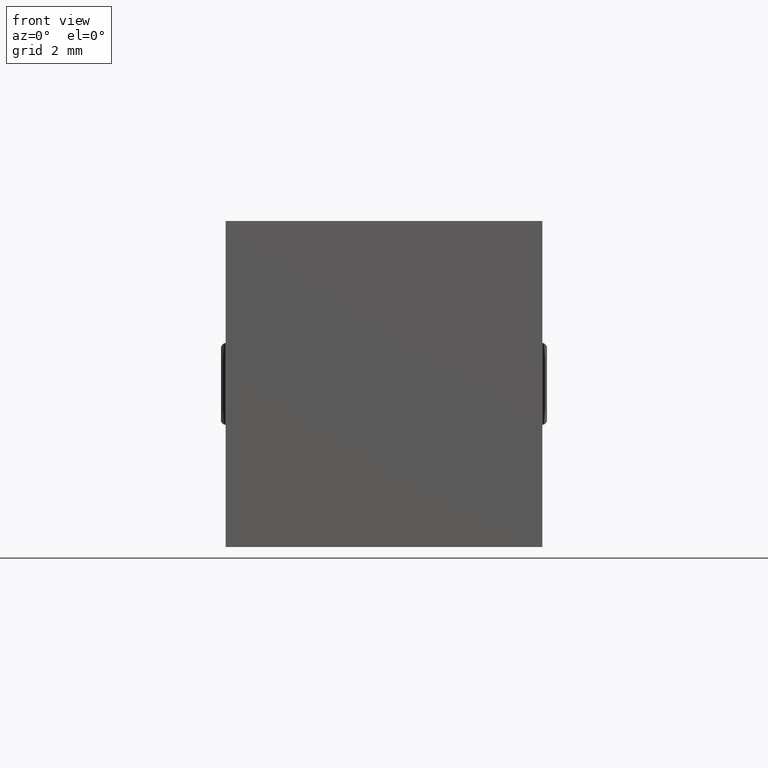
[diagram: clean part render]
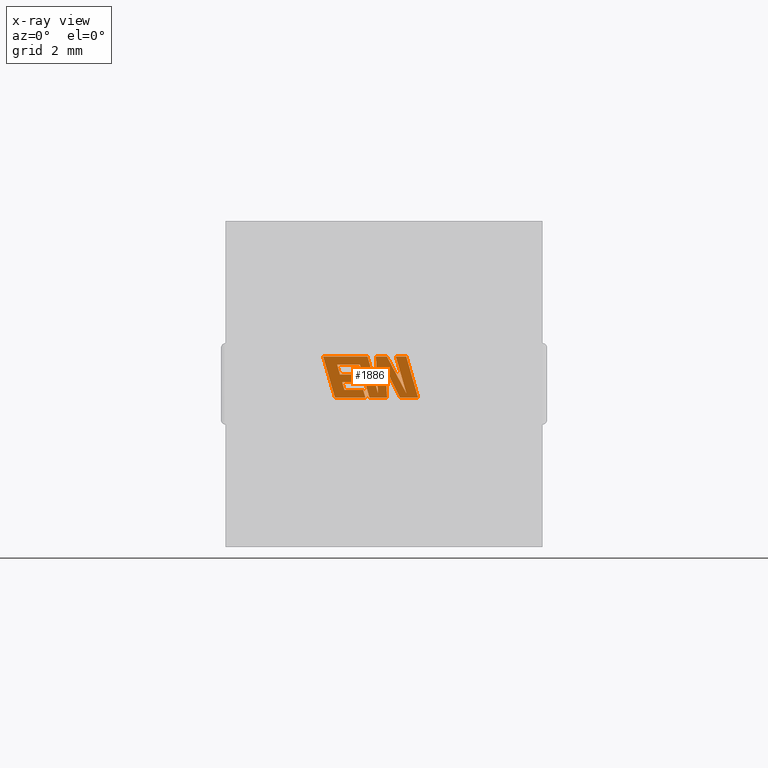
[diagram: x-ray — body ghosted, one internal face saturated and labeled with its STEP entity id]
A machine part, front view, then the same camera in x-ray: the body is ghosted and one INTERNAL B-rep face — a face not visible from any outside direction — is saturated and labeled: STEP entity #1886.
In plain terms, the highlighted planar face has unit normal (0, -1, 0).
Its self-contained STEP definition (entity closure, byte-faithful):
#30 = EDGE_CURVE ( 'NONE', #2271, #2217, #1177, .T. ) ;
#48 = DIRECTION ( 'NONE',  ( 0.4668459304955231400, 0.0000000000000000000, -0.8843386665637600300 ) ) ;
#51 = CARTESIAN_POINT ( 'NONE',  ( 5.561546968655206600, 18.10000000000000100, 4.759849656704574300 ) ) ;
#70 = CARTESIAN_POINT ( 'NONE',  ( 4.279247702984306100, 18.10000000000000100, 5.254272645011470300 ) ) ;
#72 = EDGE_CURVE ( 'NONE', #3309, #1079, #387, .T. ) ;
#91 = VECTOR ( 'NONE', #1739, 1000.000000000000100 ) ;
#110 = CARTESIAN_POINT ( 'NONE',  ( 5.561546968655206600, 18.10000000000000100, 4.759849656704574300 ) ) ;
#121 = ORIENTED_EDGE ( 'NONE', *, *, #3181, .F. ) ;
#127 = LINE ( 'NONE', #2675, #2564 ) ;
#132 = VECTOR ( 'NONE', #1263, 1000.000000000000000 ) ;
#151 = CARTESIAN_POINT ( 'NONE',  ( 4.793036486071251500, 18.10000000000000100, 6.073599999999999900 ) ) ;
#159 = CARTESIAN_POINT ( 'NONE',  ( 5.763679093957989600, 18.10000000000000100, 4.898370222301805300 ) ) ;
#196 = ORIENTED_EDGE ( 'NONE', *, *, #2824, .F. ) ;
#210 = VECTOR ( 'NONE', #1580, 999.9999999999998900 ) ;
#221 = ORIENTED_EDGE ( 'NONE', *, *, #1958, .F. ) ;
#248 = LINE ( 'NONE', #159, #91 ) ;
#255 = DIRECTION ( 'NONE',  ( 0.0000000000000000000, 0.0000000000000000000, -1.000000000000000000 ) ) ;
#269 = DIRECTION ( 'NONE',  ( 1.000000000000000000, 0.0000000000000000000, 0.0000000000000000000 ) ) ;
#309 = CARTESIAN_POINT ( 'NONE',  ( 6.137748934045092100, 18.10000000000000100, 4.759849656704574300 ) ) ;
#315 = ORIENTED_EDGE ( 'NONE', *, *, #30, .F. ) ;
#331 = DIRECTION ( 'NONE',  ( 0.05375259206908127000, 0.0000000000000000000, -0.9985542843760948400 ) ) ;
#335 = CARTESIAN_POINT ( 'NONE',  ( 4.456056460216497200, 18.10000000000000100, 4.759849656704574300 ) ) ;
#338 = EDGE_CURVE ( 'NONE', #2540, #2469, #2285, .T. ) ;
#345 = CARTESIAN_POINT ( 'NONE',  ( 5.146574942050870400, 18.10000000000000100, 4.759849656704574300 ) ) ;
#352 = LINE ( 'NONE', #814, #972 ) ;
#387 = LINE ( 'NONE', #309, #1849 ) ;
#390 = VECTOR ( 'NONE', #1252, 1000.000000000000200 ) ;
#398 = DIRECTION ( 'NONE',  ( 0.2793947940878371300, 0.0000000000000000000, -0.9601763114327571700 ) ) ;
#412 = EDGE_CURVE ( 'NONE', #1963, #1685, #2666, .T. ) ;
#456 = VECTOR ( 'NONE', #2117, 1000.000000000000000 ) ;
#459 = VECTOR ( 'NONE', #2773, 1000.000000000000000 ) ;
#464 = CARTESIAN_POINT ( 'NONE',  ( 3.715370694027962700, 18.10000000000000100, 5.254272645011470300 ) ) ;
#467 = CARTESIAN_POINT ( 'NONE',  ( 5.760036023455370500, 18.10000000000000100, 6.073599999999999900 ) ) ;
#528 = CARTESIAN_POINT ( 'NONE',  ( 5.426191753502684500, 18.10000000000000100, 6.073599999999999900 ) ) ;
#543 = VECTOR ( 'NONE', #1565, 1000.000000000000000 ) ;
#588 = CARTESIAN_POINT ( 'NONE',  ( 5.760036023455370500, 18.10000000000000100, 6.073599999999999900 ) ) ;
#610 = LINE ( 'NONE', #2544, #3302 ) ;
#614 = LINE ( 'NONE', #2075, #543 ) ;
#623 = ORIENTED_EDGE ( 'NONE', *, *, #905, .F. ) ;
#629 = CARTESIAN_POINT ( 'NONE',  ( 5.146574942050870400, 18.10000000000000100, 4.759849656704574300 ) ) ;
#633 = VERTEX_POINT ( 'NONE', #1186 ) ;
#640 = VECTOR ( 'NONE', #269, 1000.000000000000000 ) ;
#641 = EDGE_CURVE ( 'NONE', #2147, #633, #610, .T. ) ;
#666 = LINE ( 'NONE', #3112, #1437 ) ;
#691 = DIRECTION ( 'NONE',  ( -1.000000000000000000, 0.0000000000000000000, 0.0000000000000000000 ) ) ;
#699 = ORIENTED_EDGE ( 'NONE', *, *, #412, .F. ) ;
#707 = VERTEX_POINT ( 'NONE', #464 ) ;
#713 = DIRECTION ( 'NONE',  ( 0.2740217765954108800, 0.0000000000000000000, -0.9617234872620584700 ) ) ;
#736 = CARTESIAN_POINT ( 'NONE',  ( 4.385032563790553600, 18.10000000000000100, 5.009915288878209700 ) ) ;
#744 = VERTEX_POINT ( 'NONE', #335 ) ;
#814 = CARTESIAN_POINT ( 'NONE',  ( 5.143270578691509200, 18.10000000000000100, 6.073599999999999900 ) ) ;
#821 = DIRECTION ( 'NONE',  ( -1.000000000000000000, 0.0000000000000000000, 0.0000000000000000000 ) ) ;
#863 = EDGE_CURVE ( 'NONE', #1433, #744, #1544, .T. ) ;
#905 = EDGE_CURVE ( 'NONE', #1349, #1433, #1094, .T. ) ;
#909 = LINE ( 'NONE', #1874, #3144 ) ;
#972 = VECTOR ( 'NONE', #48, 1000.000000000000100 ) ;
#988 = DIRECTION ( 'NONE',  ( 0.2746459304916925600, 0.0000000000000000000, -0.9615454294334472300 ) ) ;
#1001 = CARTESIAN_POINT ( 'NONE',  ( 5.096051860518013400, 18.10000000000000100, 5.698409781575956700 ) ) ;
#1008 = LINE ( 'NONE', #51, #456 ) ;
#1018 = FACE_OUTER_BOUND ( 'NONE', #2298, .T. ) ;
#1020 = CARTESIAN_POINT ( 'NONE',  ( 4.522770187743356400, 18.10000000000000100, 6.073599999999999900 ) ) ;
#1021 = VERTEX_POINT ( 'NONE', #1342 ) ;
#1041 = EDGE_CURVE ( 'NONE', #3216, #1062, #3297, .T. ) ;
#1053 = VECTOR ( 'NONE', #1458, 1000.000000000000100 ) ;
#1062 = VERTEX_POINT ( 'NONE', #629 ) ;
#1069 = CARTESIAN_POINT ( 'NONE',  ( 3.485501733416354900, 18.10000000000000100, 4.759849656704574300 ) ) ;
#1079 = VERTEX_POINT ( 'NONE', #110 ) ;
#1085 = ORIENTED_EDGE ( 'NONE', *, *, #2201, .F. ) ;
#1086 = ORIENTED_EDGE ( 'NONE', *, *, #3277, .F. ) ;
#1094 = LINE ( 'NONE', #1822, #640 ) ;
#1102 = LINE ( 'NONE', #2830, #1755 ) ;
#1106 = LINE ( 'NONE', #2472, #132 ) ;
#1177 = LINE ( 'NONE', #3323, #2632 ) ;
#1186 = CARTESIAN_POINT ( 'NONE',  ( 3.553046337719516100, 18.10000000000000100, 5.823658200264219400 ) ) ;
#1195 = CARTESIAN_POINT ( 'NONE',  ( 4.522770187743356400, 18.10000000000000100, 6.073599999999999900 ) ) ;
#1197 = CARTESIAN_POINT ( 'NONE',  ( 4.587095149659726100, 18.10000000000000100, 4.759849656704574300 ) ) ;
#1239 = VERTEX_POINT ( 'NONE', #1399 ) ;
#1240 = LINE ( 'NONE', #528, #1660 ) ;
#1249 = CARTESIAN_POINT ( 'NONE',  ( 3.786474482350782500, 18.10000000000000100, 5.009915288878209700 ) ) ;
#1252 = DIRECTION ( 'NONE',  ( 0.2763139702539101300, 0.0000000000000000000, -0.9610674221107076100 ) ) ;
#1263 = DIRECTION ( 'NONE',  ( -0.05596501978068319600, 0.0000000000000000000, 0.9984327301130245800 ) ) ;
#1291 = DIRECTION ( 'NONE',  ( 1.000000000000000000, 0.0000000000000000000, 0.0000000000000000000 ) ) ;
#1342 = CARTESIAN_POINT ( 'NONE',  ( 3.646080451766749800, 18.10000000000000100, 5.497140017266131600 ) ) ;
#1349 = VERTEX_POINT ( 'NONE', #1249 ) ;
#1361 = EDGE_CURVE ( 'NONE', #2309, #2147, #666, .T. ) ;
#1363 = CARTESIAN_POINT ( 'NONE',  ( 5.143270578691509200, 18.10000000000000100, 6.073599999999999900 ) ) ;
#1396 = ORIENTED_EDGE ( 'NONE', *, *, #2507, .F. ) ;
#1399 = CARTESIAN_POINT ( 'NONE',  ( 4.209877568826157400, 18.10000000000000100, 5.497140017266131600 ) ) ;
#1423 = LINE ( 'NONE', #467, #390 ) ;
#1433 = VERTEX_POINT ( 'NONE', #736 ) ;
#1437 = VECTOR ( 'NONE', #2853, 1000.000000000000000 ) ;
#1458 = DIRECTION ( 'NONE',  ( -0.2765379750249951600, 0.0000000000000000000, 0.9610029908221280300 ) ) ;
#1544 = LINE ( 'NONE', #2346, #1710 ) ;
#1558 = VECTOR ( 'NONE', #2670, 1000.000000000000000 ) ;
#1565 = DIRECTION ( 'NONE',  ( 1.000000000000000000, 0.0000000000000000000, 0.0000000000000000000 ) ) ;
#1569 = ORIENTED_EDGE ( 'NONE', *, *, #1909, .F. ) ;
#1577 = LINE ( 'NONE', #345, #1825 ) ;
#1580 = DIRECTION ( 'NONE',  ( 0.2759782365590809900, 0.0000000000000000000, -0.9611638845408935200 ) ) ;
#1618 = ORIENTED_EDGE ( 'NONE', *, *, #1955, .F. ) ;
#1645 = LINE ( 'NONE', #70, #1558 ) ;
#1660 = VECTOR ( 'NONE', #1291, 1000.000000000000000 ) ;
#1685 = VERTEX_POINT ( 'NONE', #2922 ) ;
#1710 = VECTOR ( 'NONE', #2858, 1000.000000000000100 ) ;
#1739 = DIRECTION ( 'NONE',  ( -0.2760118818968594900, 0.0000000000000000000, 0.9611542233438679100 ) ) ;
#1755 = VECTOR ( 'NONE', #988, 1000.000000000000000 ) ;
#1772 = VERTEX_POINT ( 'NONE', #2228 ) ;
#1808 = DIRECTION ( 'NONE',  ( 0.0000000000000000000, -1.000000000000000000, 0.0000000000000000000 ) ) ;
#1822 = CARTESIAN_POINT ( 'NONE',  ( 3.786474482350782500, 18.10000000000000100, 5.009915288878209700 ) ) ;
#1825 = VECTOR ( 'NONE', #821, 1000.000000000000000 ) ;
#1849 = VECTOR ( 'NONE', #3193, 1000.000000000000000 ) ;
#1874 = CARTESIAN_POINT ( 'NONE',  ( 4.288926605253210200, 18.10000000000000100, 6.073599999999999900 ) ) ;
#1875 = ORIENTED_EDGE ( 'NONE', *, *, #2920, .F. ) ;
#1886 = ADVANCED_FACE ( 'NONE', ( #1018 ), #2808, .T. ) ;
#1895 = DIRECTION ( 'NONE',  ( 1.000000000000000000, 0.0000000000000000000, 0.0000000000000000000 ) ) ;
#1909 = EDGE_CURVE ( 'NONE', #2976, #3309, #1423, .T. ) ;
#1955 = EDGE_CURVE ( 'NONE', #2639, #707, #1645, .T. ) ;
#1958 = EDGE_CURVE ( 'NONE', #2217, #1772, #352, .T. ) ;
#1962 = CARTESIAN_POINT ( 'NONE',  ( 4.858595776741734300, 18.10000000000000100, 4.904002601036935100 ) ) ;
#1963 = VERTEX_POINT ( 'NONE', #1069 ) ;
#2019 = CARTESIAN_POINT ( 'NONE',  ( 4.281316903112514000, 18.10000000000000100, 5.823658200264219400 ) ) ;
#2026 = VERTEX_POINT ( 'NONE', #2766 ) ;
#2067 = ORIENTED_EDGE ( 'NONE', *, *, #641, .F. ) ;
#2075 = CARTESIAN_POINT ( 'NONE',  ( 3.646080451766749800, 18.10000000000000100, 5.497140017266131600 ) ) ;
#2112 = ORIENTED_EDGE ( 'NONE', *, *, #1041, .F. ) ;
#2117 = DIRECTION ( 'NONE',  ( -0.4443210308328765000, 0.0000000000000000000, 0.8958676361827175900 ) ) ;
#2139 = EDGE_CURVE ( 'NONE', #744, #1963, #2714, .T. ) ;
#2143 = ORIENTED_EDGE ( 'NONE', *, *, #3082, .F. ) ;
#2147 = VERTEX_POINT ( 'NONE', #2019 ) ;
#2201 = EDGE_CURVE ( 'NONE', #707, #1349, #127, .T. ) ;
#2217 = VERTEX_POINT ( 'NONE', #1363 ) ;
#2228 = CARTESIAN_POINT ( 'NONE',  ( 5.763679093957989600, 18.10000000000000100, 4.898370222301805300 ) ) ;
#2235 = CARTESIAN_POINT ( 'NONE',  ( 4.456056460216497200, 18.10000000000000100, 4.759849656704574300 ) ) ;
#2271 = VERTEX_POINT ( 'NONE', #151 ) ;
#2279 = CARTESIAN_POINT ( 'NONE',  ( 3.553046337719516100, 18.10000000000000100, 5.823658200264219400 ) ) ;
#2285 = LINE ( 'NONE', #1020, #210 ) ;
#2298 = EDGE_LOOP ( 'NONE', ( #2939, #1569, #2302, #1396, #221, #315, #2143, #2514, #2585, #699, #2682, #3090, #623, #1085, #1618, #121, #1875, #2799, #2067, #3362, #196, #2112, #1086 ) ) ;
#2302 = ORIENTED_EDGE ( 'NONE', *, *, #2700, .F. ) ;
#2309 = VERTEX_POINT ( 'NONE', #1197 ) ;
#2346 = CARTESIAN_POINT ( 'NONE',  ( 4.385032563790553600, 18.10000000000000100, 5.009915288878209700 ) ) ;
#2359 = EDGE_CURVE ( 'NONE', #633, #1021, #3346, .T. ) ;
#2409 = VECTOR ( 'NONE', #331, 1000.000000000000000 ) ;
#2467 = CARTESIAN_POINT ( 'NONE',  ( 3.485501733416354900, 18.10000000000000100, 4.759849656704574300 ) ) ;
#2469 = VERTEX_POINT ( 'NONE', #1962 ) ;
#2472 = CARTESIAN_POINT ( 'NONE',  ( 4.858595776741734300, 18.10000000000000100, 4.904002601036935100 ) ) ;
#2507 = EDGE_CURVE ( 'NONE', #1772, #2026, #248, .T. ) ;
#2514 = ORIENTED_EDGE ( 'NONE', *, *, #338, .F. ) ;
#2540 = VERTEX_POINT ( 'NONE', #1195 ) ;
#2544 = CARTESIAN_POINT ( 'NONE',  ( 4.281316903112514000, 18.10000000000000100, 5.823658200264219400 ) ) ;
#2564 = VECTOR ( 'NONE', #398, 1000.000000000000100 ) ;
#2585 = ORIENTED_EDGE ( 'NONE', *, *, #2798, .F. ) ;
#2615 = AXIS2_PLACEMENT_3D ( 'NONE', #3376, #1808, #255 ) ;
#2621 = VECTOR ( 'NONE', #713, 1000.000000000000100 ) ;
#2632 = VECTOR ( 'NONE', #3301, 1000.000000000000000 ) ;
#2639 = VERTEX_POINT ( 'NONE', #3324 ) ;
#2666 = LINE ( 'NONE', #2467, #1053 ) ;
#2670 = DIRECTION ( 'NONE',  ( -1.000000000000000000, 0.0000000000000000000, 0.0000000000000000000 ) ) ;
#2675 = CARTESIAN_POINT ( 'NONE',  ( 3.715370694027962700, 18.10000000000000100, 5.254272645011470300 ) ) ;
#2682 = ORIENTED_EDGE ( 'NONE', *, *, #2139, .F. ) ;
#2700 = EDGE_CURVE ( 'NONE', #2026, #2976, #1240, .T. ) ;
#2714 = LINE ( 'NONE', #2235, #459 ) ;
#2766 = CARTESIAN_POINT ( 'NONE',  ( 5.426191753502684500, 18.10000000000000100, 6.073599999999999900 ) ) ;
#2773 = DIRECTION ( 'NONE',  ( -1.000000000000000000, 0.0000000000000000000, 0.0000000000000000000 ) ) ;
#2798 = EDGE_CURVE ( 'NONE', #1685, #2540, #909, .T. ) ;
#2799 = ORIENTED_EDGE ( 'NONE', *, *, #2359, .F. ) ;
#2808 = PLANE ( 'NONE',  #2615 ) ;
#2824 = EDGE_CURVE ( 'NONE', #1062, #2309, #1577, .T. ) ;
#2830 = CARTESIAN_POINT ( 'NONE',  ( 4.209877568826157400, 18.10000000000000100, 5.497140017266131600 ) ) ;
#2853 = DIRECTION ( 'NONE',  ( -0.2762517575166429400, 0.0000000000000000000, 0.9610853065513830200 ) ) ;
#2858 = DIRECTION ( 'NONE',  ( 0.2732148821746312500, 0.0000000000000000000, -0.9619530280415475900 ) ) ;
#2920 = EDGE_CURVE ( 'NONE', #1021, #1239, #614, .T. ) ;
#2922 = CARTESIAN_POINT ( 'NONE',  ( 3.107457270399118300, 18.10000000000000100, 6.073599999999999900 ) ) ;
#2939 = ORIENTED_EDGE ( 'NONE', *, *, #72, .F. ) ;
#2976 = VERTEX_POINT ( 'NONE', #588 ) ;
#3082 = EDGE_CURVE ( 'NONE', #2469, #2271, #1106, .T. ) ;
#3090 = ORIENTED_EDGE ( 'NONE', *, *, #863, .F. ) ;
#3112 = CARTESIAN_POINT ( 'NONE',  ( 4.587095149659726100, 18.10000000000000100, 4.759849656704574300 ) ) ;
#3144 = VECTOR ( 'NONE', #1895, 1000.000000000000000 ) ;
#3171 = CARTESIAN_POINT ( 'NONE',  ( 6.137748934045092100, 18.10000000000000100, 4.759849656704574300 ) ) ;
#3181 = EDGE_CURVE ( 'NONE', #1239, #2639, #1102, .T. ) ;
#3193 = DIRECTION ( 'NONE',  ( -1.000000000000000000, 0.0000000000000000000, 0.0000000000000000000 ) ) ;
#3213 = CARTESIAN_POINT ( 'NONE',  ( 5.096051860518013400, 18.10000000000000100, 5.698409781575956700 ) ) ;
#3216 = VERTEX_POINT ( 'NONE', #1001 ) ;
#3277 = EDGE_CURVE ( 'NONE', #1079, #3216, #1008, .T. ) ;
#3297 = LINE ( 'NONE', #3213, #2409 ) ;
#3301 = DIRECTION ( 'NONE',  ( 1.000000000000000000, 0.0000000000000000000, 0.0000000000000000000 ) ) ;
#3302 = VECTOR ( 'NONE', #691, 1000.000000000000000 ) ;
#3309 = VERTEX_POINT ( 'NONE', #3171 ) ;
#3323 = CARTESIAN_POINT ( 'NONE',  ( 4.793036486071251500, 18.10000000000000100, 6.073599999999999900 ) ) ;
#3324 = CARTESIAN_POINT ( 'NONE',  ( 4.279247702984306100, 18.10000000000000100, 5.254272645011470300 ) ) ;
#3346 = LINE ( 'NONE', #2279, #2621 ) ;
#3362 = ORIENTED_EDGE ( 'NONE', *, *, #1361, .F. ) ;
#3376 = CARTESIAN_POINT ( 'NONE',  ( 0.001059377848845830700, 18.09999999999999400, 1.506947837945413300 ) ) ;